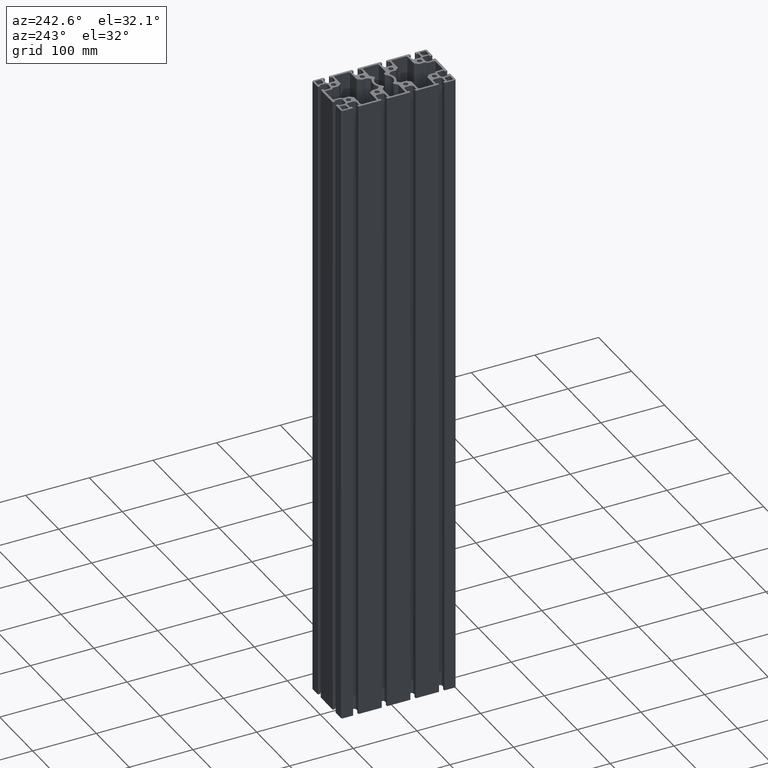
[diagram: clean part render]
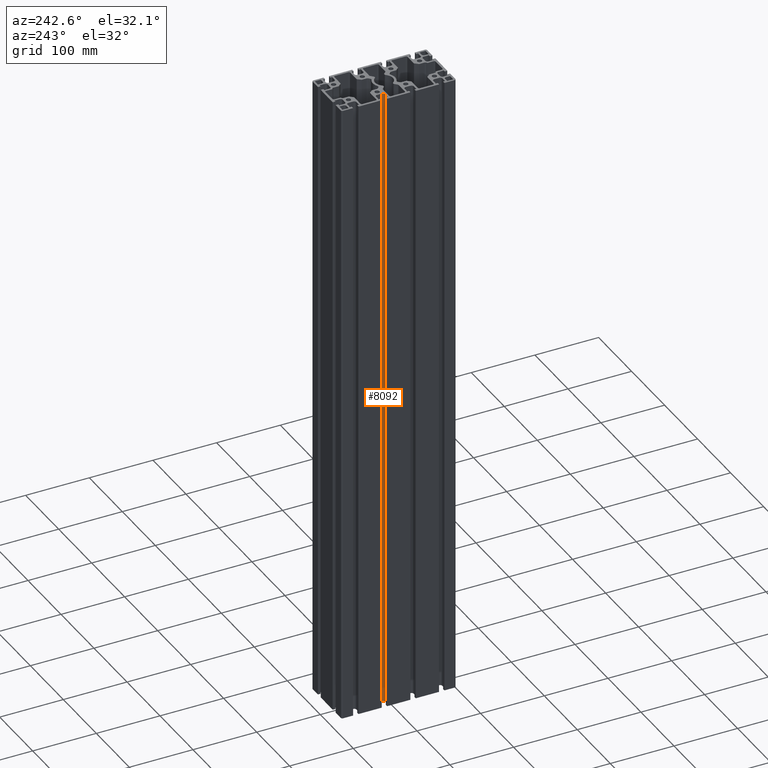
[diagram: same view with one face highlighted and labeled with its STEP entity id]
A machine part, auxiliary view. The second image highlights one B-rep face of the part: STEP entity #8092.
In plain terms, the highlighted cylindrical surface (edge-blend (fillet) strip) has radius 3.2 mm, axis along (0, 0, 1).
Its self-contained STEP definition (entity closure, byte-faithful):
#498=FACE_OUTER_BOUND('',#908,.T.);
#908=EDGE_LOOP('',(#6157,#6158,#6159,#6160));
#1568=LINE('',#12927,#2408);
#1569=LINE('',#12933,#2409);
#2408=VECTOR('',#10511,10.);
#2409=VECTOR('',#10518,10.);
#3043=CIRCLE('',#8776,3.19999999999913);
#3044=CIRCLE('',#8777,3.19999999999913);
#3647=VERTEX_POINT('',#12923);
#3648=VERTEX_POINT('',#12925);
#3649=VERTEX_POINT('',#12929);
#3650=VERTEX_POINT('',#12931);
#4698=EDGE_CURVE('',#3647,#3648,#1568,.T.);
#4699=EDGE_CURVE('',#3647,#3649,#3043,.T.);
#4700=EDGE_CURVE('',#3650,#3648,#3044,.T.);
#4701=EDGE_CURVE('',#3649,#3650,#1569,.T.);
#6157=ORIENTED_EDGE('',*,*,#4699,.F.);
#6158=ORIENTED_EDGE('',*,*,#4698,.T.);
#6159=ORIENTED_EDGE('',*,*,#4700,.F.);
#6160=ORIENTED_EDGE('',*,*,#4701,.F.);
#7790=CYLINDRICAL_SURFACE('',#8775,3.19999999999913);
#8092=ADVANCED_FACE('',(#498),#7790,.F.);
#8775=AXIS2_PLACEMENT_3D('',#12928,#10512,#10513);
#8776=AXIS2_PLACEMENT_3D('',#12930,#10514,#10515);
#8777=AXIS2_PLACEMENT_3D('',#12932,#10516,#10517);
#10511=DIRECTION('',(0.,0.,1.));
#10512=DIRECTION('center_axis',(0.,0.,1.));
#10513=DIRECTION('ref_axis',(2.92821322744965E-13,-1.,0.));
#10514=DIRECTION('center_axis',(0.,0.,1.));
#10515=DIRECTION('ref_axis',(2.92821322744965E-13,-1.,0.));
#10516=DIRECTION('center_axis',(0.,0.,-1.));
#10517=DIRECTION('ref_axis',(2.92821322744965E-13,-1.,0.));
#10518=DIRECTION('',(0.,0.,1.));
#12923=CARTESIAN_POINT('',(-32.9000000000047,15.499999999991,0.));
#12925=CARTESIAN_POINT('',(-32.9000000000047,15.499999999991,1000.));
#12927=CARTESIAN_POINT('',(-32.9000000000047,15.499999999991,0.));
#12928=CARTESIAN_POINT('Origin',(-32.9000000000056,18.6999999999902,0.));
#12929=CARTESIAN_POINT('',(-29.7000000000065,18.6999999999902,0.));
#12930=CARTESIAN_POINT('Origin',(-32.9000000000056,18.6999999999902,0.));
#12931=CARTESIAN_POINT('',(-29.7000000000065,18.6999999999902,1000.));
#12932=CARTESIAN_POINT('Origin',(-32.9000000000056,18.6999999999902,1000.));
#12933=CARTESIAN_POINT('',(-29.7000000000065,18.6999999999902,0.));